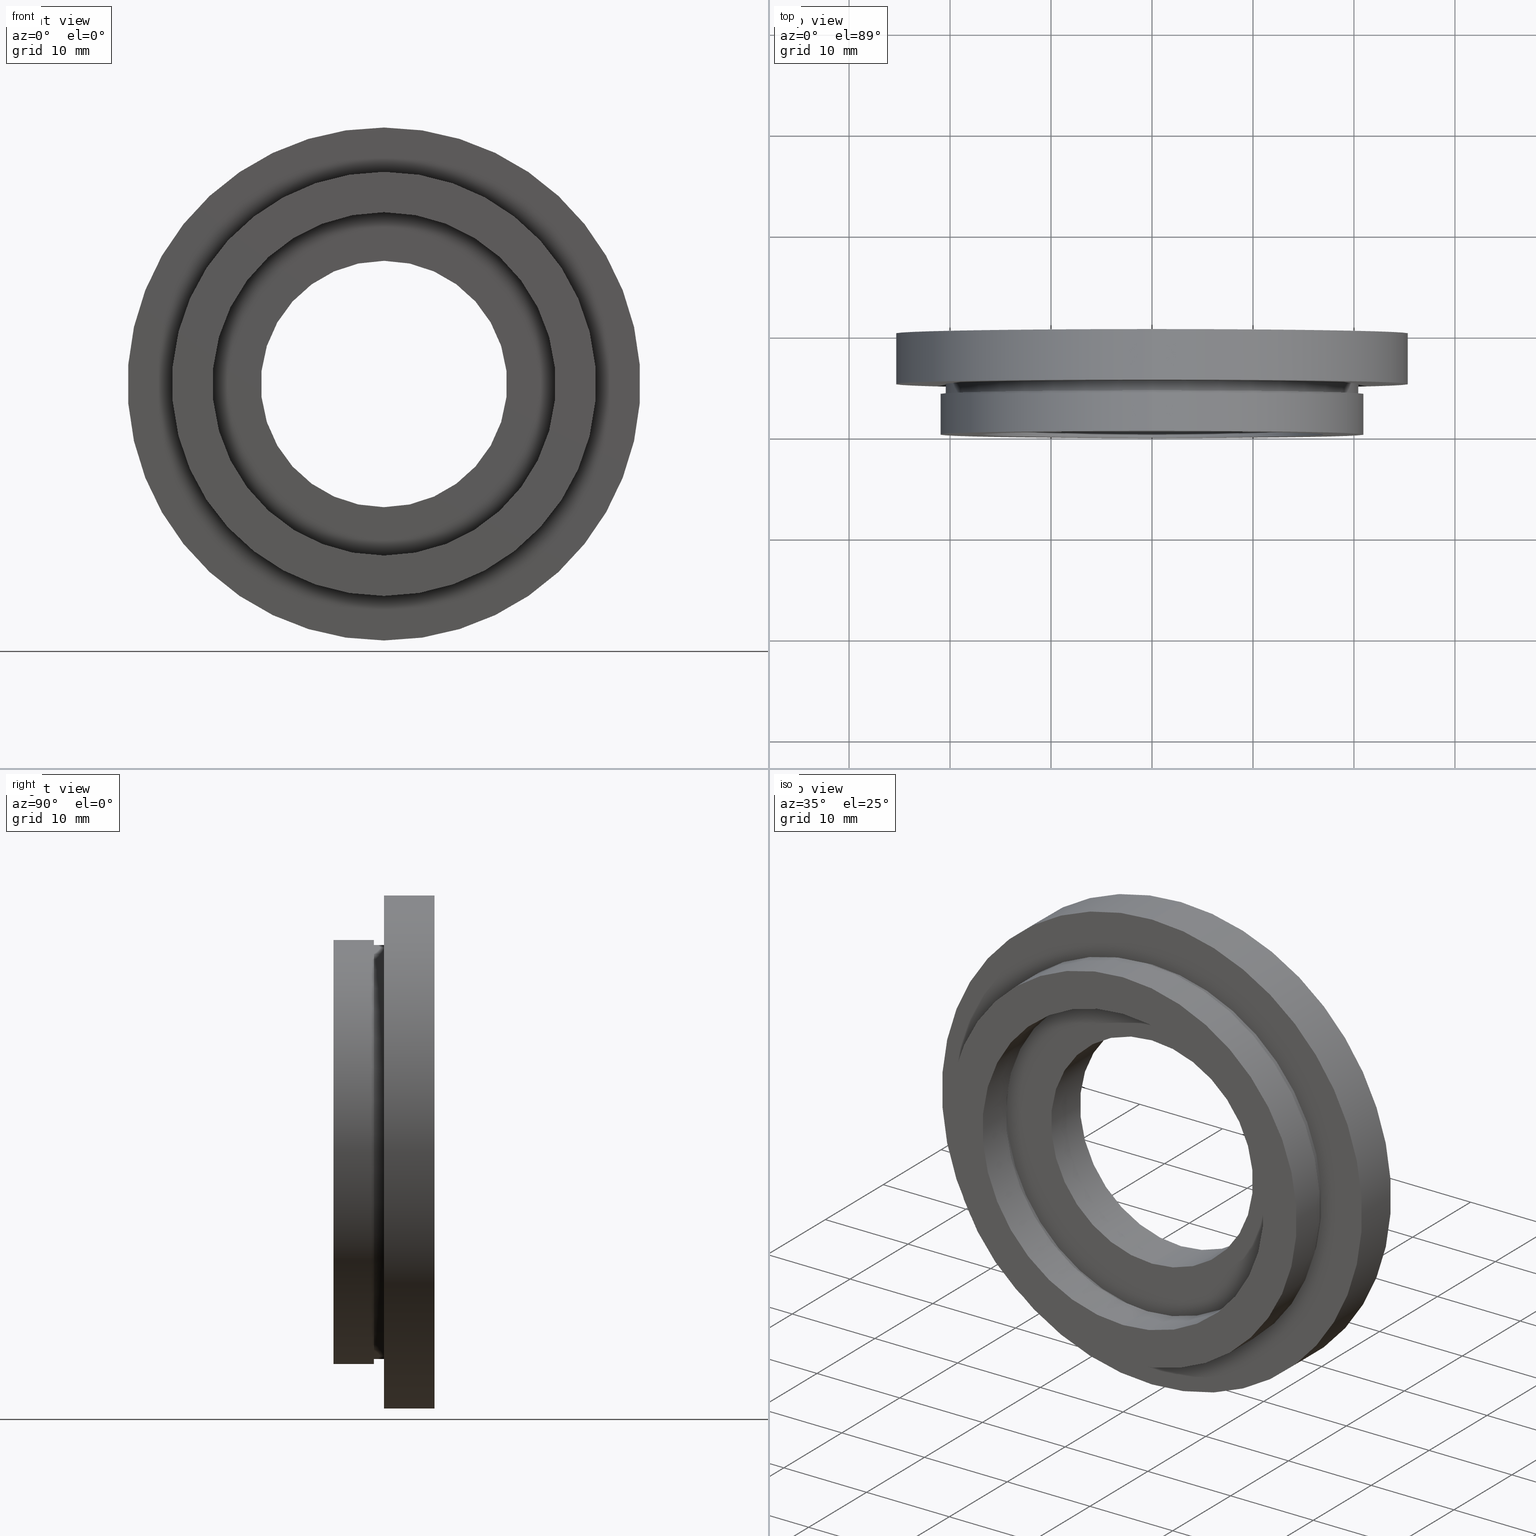
[diagram: canonical four-view strip — front | top / right | iso, engineering-drawing reading convention]
A machine part, canonical four-view strip (front | top / right | iso — engineering-drawing reading convention). The complete STEP part file that produces these views, byte-faithful:
ISO-10303-21;
HEADER;
FILE_DESCRIPTION (( 'STEP AP214' ),
    '1' );
FILE_NAME ('504034.STEP',
    '2019-09-29T09:12:28',
    ( 'user' ),
    ( '΢���й�' ),
    'SwSTEP 2.0',
    'SolidWorks 2016',
    '' );
FILE_SCHEMA (( 'AUTOMOTIVE_DESIGN' ));
ENDSEC;

DATA;
#1 = CYLINDRICAL_SURFACE ( 'NONE', #453, 12.20000000000000100 ) ;
#2 = SURFACE_SIDE_STYLE ('',( #545 ) ) ;
#3 = DIRECTION ( 'NONE',  ( 0.0000000000000000000, -0.0000000000000000000, -1.000000000000000000 ) ) ;
#4 = DIRECTION ( 'NONE',  ( -0.0000000000000000000, 1.000000000000000000, -0.0000000000000000000 ) ) ;
#5 = CARTESIAN_POINT ( 'NONE',  ( 0.0000000000000000000, 4.999999999999999100, 0.0000000000000000000 ) ) ;
#6 = DIRECTION ( 'NONE',  ( -0.0000000000000000000, 1.000000000000000000, -0.0000000000000000000 ) ) ;
#7 = CARTESIAN_POINT ( 'NONE',  ( 17.00000000000000400, 4.000000000000000000, 0.0000000000000000000 ) ) ;
#8 =( LENGTH_UNIT ( ) NAMED_UNIT ( * ) SI_UNIT ( .MILLI., .METRE. ) );
#9 = CARTESIAN_POINT ( 'NONE',  ( 0.0000000000000000000, 0.0000000000000000000, 0.0000000000000000000 ) ) ;
#10 = AXIS2_PLACEMENT_3D ( 'NONE', #191, #35, #592 ) ;
#11 = ORIENTED_EDGE ( 'NONE', *, *, #428, .F. ) ;
#12 = CARTESIAN_POINT ( 'NONE',  ( 2.510525938252074500E-015, 5.000000000000000900, -20.50000000000000000 ) ) ;
#13 = EDGE_LOOP ( 'NONE', ( #99, #154, #185, #187 ) ) ;
#14 = ORIENTED_EDGE ( 'NONE', *, *, #466, .F. ) ;
#15 = LINE ( 'NONE', #211, #257 ) ;
#16 = CARTESIAN_POINT ( 'NONE',  ( 0.0000000000000000000, 5.000000000000000900, 0.0000000000000000000 ) ) ;
#17 =( LENGTH_UNIT ( ) NAMED_UNIT ( * ) SI_UNIT ( .MILLI., .METRE. ) );
#18 = AXIS2_PLACEMENT_3D ( 'NONE', #131, #366, #618 ) ;
#19 =( NAMED_UNIT ( * ) PLANE_ANGLE_UNIT ( ) SI_UNIT ( $, .RADIAN. ) );
#20 = ORIENTED_EDGE ( 'NONE', *, *, #420, .F. ) ;
#21 =( GEOMETRIC_REPRESENTATION_CONTEXT ( 3 ) GLOBAL_UNCERTAINTY_ASSIGNED_CONTEXT ( ( #392 ) ) GLOBAL_UNIT_ASSIGNED_CONTEXT ( ( #176, #19, #354 ) ) REPRESENTATION_CONTEXT ( 'NONE', 'WORKASPACE' ) );
#22 =( GEOMETRIC_REPRESENTATION_CONTEXT ( 3 ) GLOBAL_UNCERTAINTY_ASSIGNED_CONTEXT ( ( #460 ) ) GLOBAL_UNIT_ASSIGNED_CONTEXT ( ( #239, #525, #186 ) ) REPRESENTATION_CONTEXT ( 'NONE', 'WORKASPACE' ) );
#23 = DIRECTION ( 'NONE',  ( 0.0000000000000000000, 0.0000000000000000000, 1.000000000000000000 ) ) ;
#24 = DIRECTION ( 'NONE',  ( -0.0000000000000000000, 1.000000000000000000, -0.0000000000000000000 ) ) ;
#25 = EDGE_LOOP ( 'NONE', ( #508, #499, #76, #506 ) ) ;
#26 = VERTEX_POINT ( 'NONE', #355 ) ;
#27 = CARTESIAN_POINT ( 'NONE',  ( 0.0000000000000000000, 17.41929831819392000, 0.0000000000000000000 ) ) ;
#28 = AXIS2_PLACEMENT_3D ( 'NONE', #581, #47, #357 ) ;
#29 = EDGE_LOOP ( 'NONE', ( #528, #364 ) ) ;
#30 = CIRCLE ( 'NONE', #67, 17.60000000000000100 ) ;
#31 = PRODUCT_CONTEXT ( 'NONE', #85, 'mechanical' ) ;
#32 = SURFACE_STYLE_USAGE ( .BOTH. , #2 ) ;
#33 = DIRECTION ( 'NONE',  ( 0.0000000000000000000, 0.0000000000000000000, 1.000000000000000000 ) ) ;
#34 = COLOUR_RGB ( '',1.000000000000000000, 1.000000000000000000, 1.000000000000000000 ) ;
#35 = DIRECTION ( 'NONE',  ( -0.0000000000000000000, 1.000000000000000000, -0.0000000000000000000 ) ) ;
#36 = EDGE_CURVE ( 'NONE', #145, #303, #224, .T. ) ;
#37 = DIRECTION ( 'NONE',  ( 0.0000000000000000000, 0.0000000000000000000, 1.000000000000000000 ) ) ;
#38 = SURFACE_STYLE_FILL_AREA ( #345 ) ;
#39 = CIRCLE ( 'NONE', #10, 12.20000000000000100 ) ;
#40 = AXIS2_PLACEMENT_3D ( 'NONE', #127, #361, #33 ) ;
#41 = DIRECTION ( 'NONE',  ( 0.0000000000000000000, 0.0000000000000000000, 1.000000000000000000 ) ) ;
#42 = ORIENTED_EDGE ( 'NONE', *, *, #424, .T. ) ;
#43 = SURFACE_STYLE_FILL_AREA ( #248 ) ;
#44 = CIRCLE ( 'NONE', #571, 12.20000000000000100 ) ;
#45 = PRESENTATION_STYLE_ASSIGNMENT (( #258 ) ) ;
#46 = CARTESIAN_POINT ( 'NONE',  ( 21.00000000000000400, 4.000000000000000000, 0.0000000000000000000 ) ) ;
#47 = DIRECTION ( 'NONE',  ( 0.0000000000000000000, 0.0000000000000000000, 1.000000000000000000 ) ) ;
#48 = ORIENTED_EDGE ( 'NONE', *, *, #132, .F. ) ;
#49 = STYLED_ITEM ( 'NONE', ( #289 ), #54 ) ;
#50 = AXIS2_PLACEMENT_3D ( 'NONE', #46, #520, #97 ) ;
#51 = DIRECTION ( 'NONE',  ( -0.0000000000000000000, 1.000000000000000000, -0.0000000000000000000 ) ) ;
#52 = SURFACE_STYLE_FILL_AREA ( #479 ) ;
#53 = PRODUCT_DEFINITION_SHAPE ( 'NONE', 'NONE',  #59 ) ;
#54 = ADVANCED_FACE ( 'NONE', ( #600 ), #593, .F. ) ;
#55 = ORIENTED_EDGE ( 'NONE', *, *, #440, .F. ) ;
#56 = PLANE ( 'NONE',  #133 ) ;
#57 = ORIENTED_EDGE ( 'NONE', *, *, #274, .F. ) ;
#58 = FACE_OUTER_BOUND ( 'NONE', #201, .T. ) ;
#59 = PRODUCT_DEFINITION ( 'δ֪', '', #189, #562 ) ;
#60 = LINE ( 'NONE', #340, #291 ) ;
#61 = CARTESIAN_POINT ( 'NONE',  ( 0.0000000000000000000, 17.41929831819392000, 0.0000000000000000000 ) ) ;
#62 = AXIS2_PLACEMENT_3D ( 'NONE', #5, #167, #277 ) ;
#63 = ORIENTED_EDGE ( 'NONE', *, *, #79, .F. ) ;
#64 = ORIENTED_EDGE ( 'NONE', *, *, #383, .T. ) ;
#65 = PRESENTATION_LAYER_ASSIGNMENT (  '', '', ( #472 ) ) ;
#66 = CARTESIAN_POINT ( 'NONE',  ( 0.0000000000000000000, 4.000000000000000000, 0.0000000000000000000 ) ) ;
#67 = AXIS2_PLACEMENT_3D ( 'NONE', #158, #564, #156 ) ;
#68 = VERTEX_POINT ( 'NONE', #12 ) ;
#69 = DIRECTION ( 'NONE',  ( 0.0000000000000000000, 0.0000000000000000000, 1.000000000000000000 ) ) ;
#70 = COLOUR_RGB ( '',1.000000000000000000, 1.000000000000000000, 1.000000000000000000 ) ;
#71 = VECTOR ( 'NONE', #246, 1000.000000000000000 ) ;
#72 = STYLED_ITEM ( 'NONE', ( #568 ), #620 ) ;
#73 = APPLICATION_CONTEXT ( 'automotive_design' ) ;
#74 = ADVANCED_FACE ( 'NONE', ( #414 ), #139, .T. ) ;
#75 = ORIENTED_EDGE ( 'NONE', *, *, #83, .F. ) ;
#76 = ORIENTED_EDGE ( 'NONE', *, *, #469, .T. ) ;
#77 = DIRECTION ( 'NONE',  ( -0.0000000000000000000, 1.000000000000000000, -0.0000000000000000000 ) ) ;
#78 = ADVANCED_FACE ( 'NONE', ( #349 ), #306, .F. ) ;
#79 = EDGE_CURVE ( 'NONE', #442, #403, #44, .T. ) ;
#80 = AXIS2_PLACEMENT_3D ( 'NONE', #66, #130, #23 ) ;
#81 = VERTEX_POINT ( 'NONE', #88 ) ;
#82 = EDGE_LOOP ( 'NONE', ( #55, #438, #42, #439 ) ) ;
#83 = EDGE_CURVE ( 'NONE', #109, #243, #290, .T. ) ;
#84 = ORIENTED_EDGE ( 'NONE', *, *, #338, .F. ) ;
#85 = APPLICATION_CONTEXT ( 'automotive_design' ) ;
#86 = FILL_AREA_STYLE ('',( #319 ) ) ;
#87 = CIRCLE ( 'NONE', #263, 20.50000000000000000 ) ;
#88 = CARTESIAN_POINT ( 'NONE',  ( 2.571758278209442100E-015, 0.0000000000000000000, -21.00000000000000400 ) ) ;
#89 = CARTESIAN_POINT ( 'NONE',  ( 2.510525938252074500E-015, 4.000000000000000000, -20.50000000000000000 ) ) ;
#90 = EDGE_LOOP ( 'NONE', ( #302, #474, #75, #209 ) ) ;
#91 = DIRECTION ( 'NONE',  ( 0.0000000000000000000, -0.0000000000000000000, -1.000000000000000000 ) ) ;
#92 = ADVANCED_BREP_SHAPE_REPRESENTATION ( '504034', ( #264, #28 ), #22 ) ;
#93 = DIRECTION ( 'NONE',  ( 0.0000000000000000000, 0.0000000000000000000, 1.000000000000000000 ) ) ;
#94 = CIRCLE ( 'NONE', #435, 17.60000000000000100 ) ;
#95 = AXIS2_PLACEMENT_3D ( 'NONE', #96, #197, #93 ) ;
#96 = CARTESIAN_POINT ( 'NONE',  ( 0.0000000000000000000, 4.000000000000000000, 0.0000000000000000000 ) ) ;
#97 = DIRECTION ( 'NONE',  ( 0.0000000000000000000, -0.0000000000000000000, -1.000000000000000000 ) ) ;
#98 = EDGE_LOOP ( 'NONE', ( #160, #456, #251, #572 ) ) ;
#99 = ORIENTED_EDGE ( 'NONE', *, *, #409, .F. ) ;
#100 = AXIS2_PLACEMENT_3D ( 'NONE', #553, #162, #122 ) ;
#101 = SURFACE_STYLE_USAGE ( .BOTH. , #170 ) ;
#102 = AXIS2_PLACEMENT_3D ( 'NONE', #449, #269, #612 ) ;
#103 = CYLINDRICAL_SURFACE ( 'NONE', #215, 17.00000000000000400 ) ;
#104 = CARTESIAN_POINT ( 'NONE',  ( 0.0000000000000000000, 10.00000000000000000, 0.0000000000000000000 ) ) ;
#105 = PRESENTATION_STYLE_ASSIGNMENT (( #607 ) ) ;
#106 =( NAMED_UNIT ( * ) SI_UNIT ( $, .STERADIAN. ) SOLID_ANGLE_UNIT ( ) );
#107 = DIRECTION ( 'NONE',  ( 0.0000000000000000000, -1.000000000000000000, 0.0000000000000000000 ) ) ;
#108 = AXIS2_PLACEMENT_3D ( 'NONE', #193, #373, #505 ) ;
#109 = VERTEX_POINT ( 'NONE', #555 ) ;
#110 = PRESENTATION_STYLE_ASSIGNMENT (( #597 ) ) ;
#111 = DIRECTION ( 'NONE',  ( -0.0000000000000000000, 1.000000000000000000, -0.0000000000000000000 ) ) ;
#112 = CARTESIAN_POINT ( 'NONE',  ( 0.0000000000000000000, 17.41929831819392000, 0.0000000000000000000 ) ) ;
#113 = CARTESIAN_POINT ( 'NONE',  ( 0.0000000000000000000, 17.41929831819392000, 12.20000000000000100 ) ) ;
#114 =( NAMED_UNIT ( * ) SI_UNIT ( $, .STERADIAN. ) SOLID_ANGLE_UNIT ( ) );
#115 = ORIENTED_EDGE ( 'NONE', *, *, #301, .T. ) ;
#116 = UNCERTAINTY_MEASURE_WITH_UNIT (LENGTH_MEASURE( 1.000000000000000100E-005 ), #143, 'distance_accuracy_value', 'NONE');
#117 = EDGE_CURVE ( 'NONE', #331, #457, #608, .T. ) ;
#118 = AXIS2_PLACEMENT_3D ( 'NONE', #523, #6, #574 ) ;
#119 = CIRCLE ( 'NONE', #149, 21.00000000000000400 ) ;
#120 = DIRECTION ( 'NONE',  ( -0.0000000000000000000, 1.000000000000000000, -0.0000000000000000000 ) ) ;
#121 = COLOUR_RGB ( '',1.000000000000000000, 1.000000000000000000, 1.000000000000000000 ) ;
#122 = DIRECTION ( 'NONE',  ( 0.0000000000000000000, 0.0000000000000000000, 1.000000000000000000 ) ) ;
#123 = UNCERTAINTY_MEASURE_WITH_UNIT (LENGTH_MEASURE( 1.000000000000000100E-005 ), #336, 'distance_accuracy_value', 'NONE');
#124 = DIRECTION ( 'NONE',  ( -0.0000000000000000000, 1.000000000000000000, -0.0000000000000000000 ) ) ;
#125 = ORIENTED_EDGE ( 'NONE', *, *, #447, .T. ) ;
#126 = MECHANICAL_DESIGN_GEOMETRIC_PRESENTATION_REPRESENTATION (  '', ( #408 ), #380 ) ;
#127 = CARTESIAN_POINT ( 'NONE',  ( 0.0000000000000000000, 10.00000000000000000, 0.0000000000000000000 ) ) ;
#128 = LINE ( 'NONE', #255, #381 ) ;
#129 = ADVANCED_FACE ( 'NONE', ( #490 ), #341, .T. ) ;
#130 = DIRECTION ( 'NONE',  ( -0.0000000000000000000, 1.000000000000000000, -0.0000000000000000000 ) ) ;
#131 = CARTESIAN_POINT ( 'NONE',  ( 0.0000000000000000000, 17.41929831819392000, 0.0000000000000000000 ) ) ;
#132 = EDGE_CURVE ( 'NONE', #267, #68, #359, .T. ) ;
#133 = AXIS2_PLACEMENT_3D ( 'NONE', #7, #107, #3 ) ;
#134 = PLANE ( 'NONE',  #265 ) ;
#135 = ADVANCED_FACE ( 'NONE', ( #165, #203 ), #238, .F. ) ;
#136 = AXIS2_PLACEMENT_3D ( 'NONE', #27, #514, #398 ) ;
#137 = EDGE_LOOP ( 'NONE', ( #546, #330 ) ) ;
#138 = DIRECTION ( 'NONE',  ( -0.0000000000000000000, 1.000000000000000000, -0.0000000000000000000 ) ) ;
#139 = CYLINDRICAL_SURFACE ( 'NONE', #450, 21.00000000000000400 ) ;
#140 = EDGE_LOOP ( 'NONE', ( #11, #175 ) ) ;
#141 = PLANE ( 'NONE',  #159 ) ;
#142 = VECTOR ( 'NONE', #51, 1000.000000000000000 ) ;
#143 =( LENGTH_UNIT ( ) NAMED_UNIT ( * ) SI_UNIT ( .MILLI., .METRE. ) );
#144 = DIRECTION ( 'NONE',  ( -0.0000000000000000000, 1.000000000000000000, -0.0000000000000000000 ) ) ;
#145 = VERTEX_POINT ( 'NONE', #280 ) ;
#146 = EDGE_CURVE ( 'NONE', #403, #442, #39, .T. ) ;
#147 = AXIS2_PLACEMENT_3D ( 'NONE', #429, #144, #455 ) ;
#148 = CYLINDRICAL_SURFACE ( 'NONE', #136, 17.60000000000000100 ) ;
#149 = AXIS2_PLACEMENT_3D ( 'NONE', #489, #124, #436 ) ;
#150 = DIRECTION ( 'NONE',  ( -0.0000000000000000000, 1.000000000000000000, -0.0000000000000000000 ) ) ;
#151 = CARTESIAN_POINT ( 'NONE',  ( 0.0000000000000000000, 4.999999999999999100, 0.0000000000000000000 ) ) ;
#152 = AXIS2_PLACEMENT_3D ( 'NONE', #195, #448, #208 ) ;
#153 = DIRECTION ( 'NONE',  ( 0.0000000000000000000, 0.0000000000000000000, 1.000000000000000000 ) ) ;
#154 = ORIENTED_EDGE ( 'NONE', *, *, #36, .F. ) ;
#155 = VERTEX_POINT ( 'NONE', #609 ) ;
#156 = DIRECTION ( 'NONE',  ( 0.0000000000000000000, 0.0000000000000000000, 1.000000000000000000 ) ) ;
#157 = FACE_OUTER_BOUND ( 'NONE', #606, .T. ) ;
#158 = CARTESIAN_POINT ( 'NONE',  ( 0.0000000000000000000, 4.000000000000000000, 0.0000000000000000000 ) ) ;
#159 = AXIS2_PLACEMENT_3D ( 'NONE', #569, #377, #91 ) ;
#160 = ORIENTED_EDGE ( 'NONE', *, *, #447, .F. ) ;
#161 = AXIS2_PLACEMENT_3D ( 'NONE', #426, #138, #531 ) ;
#162 = DIRECTION ( 'NONE',  ( -0.0000000000000000000, 1.000000000000000000, -0.0000000000000000000 ) ) ;
#163 = SURFACE_SIDE_STYLE ('',( #326 ) ) ;
#164 = ADVANCED_FACE ( 'NONE', ( #372 ), #148, .F. ) ;
#165 = FACE_BOUND ( 'NONE', #192, .T. ) ;
#166 = FILL_AREA_STYLE_COLOUR ( '', #34 ) ;
#167 = DIRECTION ( 'NONE',  ( -0.0000000000000000000, 1.000000000000000000, -0.0000000000000000000 ) ) ;
#168 = PRESENTATION_LAYER_ASSIGNMENT (  '', '', ( #172 ) ) ;
#169 = ADVANCED_FACE ( 'NONE', ( #279 ), #575, .T. ) ;
#170 = SURFACE_SIDE_STYLE ('',( #38 ) ) ;
#171 = COLOUR_RGB ( '',1.000000000000000000, 1.000000000000000000, 1.000000000000000000 ) ;
#172 = STYLED_ITEM ( 'NONE', ( #621 ), #264 ) ;
#173 = SURFACE_STYLE_FILL_AREA ( #368 ) ;
#174 = CIRCLE ( 'NONE', #80, 20.50000000000000000 ) ;
#175 = ORIENTED_EDGE ( 'NONE', *, *, #335, .F. ) ;
#176 =( LENGTH_UNIT ( ) NAMED_UNIT ( * ) SI_UNIT ( .MILLI., .METRE. ) );
#177 = ORIENTED_EDGE ( 'NONE', *, *, #83, .T. ) ;
#178 = DIRECTION ( 'NONE',  ( -0.0000000000000000000, 1.000000000000000000, 0.0000000000000000000 ) ) ;
#179 = ADVANCED_FACE ( 'NONE', ( #217, #510 ), #56, .F. ) ;
#180 = AXIS2_PLACEMENT_3D ( 'NONE', #151, #225, #228 ) ;
#181 = CARTESIAN_POINT ( 'NONE',  ( 2.155378366499341600E-015, 4.999999999999999100, -17.60000000000000100 ) ) ;
#182 = DIRECTION ( 'NONE',  ( -0.0000000000000000000, 1.000000000000000000, -0.0000000000000000000 ) ) ;
#183 = AXIS2_PLACEMENT_3D ( 'NONE', #216, #404, #590 ) ;
#184 = STYLED_ITEM ( 'NONE', ( #110 ), #74 ) ;
#185 = ORIENTED_EDGE ( 'NONE', *, *, #394, .T. ) ;
#186 =( NAMED_UNIT ( * ) SI_UNIT ( $, .STERADIAN. ) SOLID_ANGLE_UNIT ( ) );
#187 = ORIENTED_EDGE ( 'NONE', *, *, #146, .T. ) ;
#188 = EDGE_CURVE ( 'NONE', #500, #613, #119, .T. ) ;
#189 = PRODUCT_DEFINITION_FORMATION_WITH_SPECIFIED_SOURCE ( '�κ�', '', #431, .NOT_KNOWN. ) ;
#190 = SURFACE_SIDE_STYLE ('',( #588 ) ) ;
#191 = CARTESIAN_POINT ( 'NONE',  ( 0.0000000000000000000, 10.00000000000000000, 0.0000000000000000000 ) ) ;
#192 = EDGE_LOOP ( 'NONE', ( #458, #533 ) ) ;
#193 = CARTESIAN_POINT ( 'NONE',  ( 0.0000000000000000000, 4.000000000000000000, 0.0000000000000000000 ) ) ;
#194 = EDGE_CURVE ( 'NONE', #480, #26, #407, .T. ) ;
#195 = CARTESIAN_POINT ( 'NONE',  ( 0.0000000000000000000, 17.41929831819392000, 0.0000000000000000000 ) ) ;
#196 = CARTESIAN_POINT ( 'NONE',  ( 0.0000000000000000000, 17.41929831819392000, 0.0000000000000000000 ) ) ;
#197 = DIRECTION ( 'NONE',  ( -0.0000000000000000000, 1.000000000000000000, -0.0000000000000000000 ) ) ;
#198 = STYLED_ITEM ( 'NONE', ( #105 ), #129 ) ;
#199 = EDGE_LOOP ( 'NONE', ( #337, #313 ) ) ;
#200 = CARTESIAN_POINT ( 'NONE',  ( 1.494069094959771100E-015, 4.999999999999999100, -12.20000000000000100 ) ) ;
#201 = EDGE_LOOP ( 'NONE', ( #566, #385, #557, #537 ) ) ;
#202 = PRESENTATION_STYLE_ASSIGNMENT (( #32 ) ) ;
#203 = FACE_OUTER_BOUND ( 'NONE', #347, .T. ) ;
#204 = CIRCLE ( 'NONE', #256, 20.50000000000000000 ) ;
#205 = AXIS2_PLACEMENT_3D ( 'NONE', #624, #318, #362 ) ;
#206 = CARTESIAN_POINT ( 'NONE',  ( 0.0000000000000000000, 5.000000000000000900, 0.0000000000000000000 ) ) ;
#207 = AXIS2_PLACEMENT_3D ( 'NONE', #527, #178, #512 ) ;
#208 = DIRECTION ( 'NONE',  ( 0.0000000000000000000, 0.0000000000000000000, 1.000000000000000000 ) ) ;
#209 = ORIENTED_EDGE ( 'NONE', *, *, #469, .F. ) ;
#210 = ORIENTED_EDGE ( 'NONE', *, *, #328, .T. ) ;
#211 = CARTESIAN_POINT ( 'NONE',  ( 2.510525938252074500E-015, 17.41929831819392000, -20.50000000000000000 ) ) ;
#212 =( NAMED_UNIT ( * ) PLANE_ANGLE_UNIT ( ) SI_UNIT ( $, .RADIAN. ) );
#213 = FILL_AREA_STYLE_COLOUR ( '', #121 ) ;
#214 = CARTESIAN_POINT ( 'NONE',  ( 2.155378366499341600E-015, 17.41929831819392000, -17.60000000000000100 ) ) ;
#215 = AXIS2_PLACEMENT_3D ( 'NONE', #443, #77, #441 ) ;
#216 = CARTESIAN_POINT ( 'NONE',  ( 0.0000000000000000000, 0.0000000000000000000, 0.0000000000000000000 ) ) ;
#217 = FACE_BOUND ( 'NONE', #402, .T. ) ;
#218 = CIRCLE ( 'NONE', #102, 21.00000000000000400 ) ;
#219 = CARTESIAN_POINT ( 'NONE',  ( 0.0000000000000000000, 4.000000000000000000, 17.00000000000000400 ) ) ;
#220 = AXIS2_PLACEMENT_3D ( 'NONE', #578, #585, #396 ) ;
#221 = VERTEX_POINT ( 'NONE', #483 ) ;
#222 = ORIENTED_EDGE ( 'NONE', *, *, #310, .T. ) ;
#223 = CARTESIAN_POINT ( 'NONE',  ( 0.0000000000000000000, 10.00000000000000000, 0.0000000000000000000 ) ) ;
#224 = CIRCLE ( 'NONE', #100, 12.20000000000000100 ) ;
#225 = DIRECTION ( 'NONE',  ( -0.0000000000000000000, 1.000000000000000000, -0.0000000000000000000 ) ) ;
#226 = ADVANCED_FACE ( 'NONE', ( #464 ), #236, .T. ) ;
#227 = DIRECTION ( 'NONE',  ( -0.0000000000000000000, 1.000000000000000000, -0.0000000000000000000 ) ) ;
#228 = DIRECTION ( 'NONE',  ( 0.0000000000000000000, 0.0000000000000000000, 1.000000000000000000 ) ) ;
#229 = SURFACE_SIDE_STYLE ('',( #451 ) ) ;
#230 = FACE_BOUND ( 'NONE', #470, .T. ) ;
#231 = DIRECTION ( 'NONE',  ( -0.0000000000000000000, 1.000000000000000000, -0.0000000000000000000 ) ) ;
#232 = EDGE_LOOP ( 'NONE', ( #210, #535, #498, #437 ) ) ;
#233 = DIRECTION ( 'NONE',  ( -0.0000000000000000000, 1.000000000000000000, -0.0000000000000000000 ) ) ;
#234 = SHAPE_DEFINITION_REPRESENTATION ( #53, #92 ) ;
#235 = DIRECTION ( 'NONE',  ( -0.0000000000000000000, 1.000000000000000000, -0.0000000000000000000 ) ) ;
#236 = CYLINDRICAL_SURFACE ( 'NONE', #314, 20.50000000000000000 ) ;
#237 = CIRCLE ( 'NONE', #275, 17.00000000000000400 ) ;
#238 = PLANE ( 'NONE',  #50 ) ;
#239 =( LENGTH_UNIT ( ) NAMED_UNIT ( * ) SI_UNIT ( .MILLI., .METRE. ) );
#240 = DIRECTION ( 'NONE',  ( 0.0000000000000000000, 0.0000000000000000000, 1.000000000000000000 ) ) ;
#241 = SURFACE_STYLE_USAGE ( .BOTH. , #190 ) ;
#242 = CARTESIAN_POINT ( 'NONE',  ( 0.0000000000000000000, 17.41929831819392000, 0.0000000000000000000 ) ) ;
#243 = VERTEX_POINT ( 'NONE', #445 ) ;
#244 = PRODUCT_RELATED_PRODUCT_CATEGORY ( 'part', '', ( #431 ) ) ;
#245 = FILL_AREA_STYLE_COLOUR ( '', #171 ) ;
#246 = DIRECTION ( 'NONE',  ( -0.0000000000000000000, 1.000000000000000000, -0.0000000000000000000 ) ) ;
#247 = VECTOR ( 'NONE', #120, 1000.000000000000000 ) ;
#248 = FILL_AREA_STYLE ('',( #245 ) ) ;
#249 = CARTESIAN_POINT ( 'NONE',  ( 3.110602869834276900E-015, 17.41929831819392000, -25.39999999999999900 ) ) ;
#250 = DIRECTION ( 'NONE',  ( 0.0000000000000000000, 0.0000000000000000000, 1.000000000000000000 ) ) ;
#251 = ORIENTED_EDGE ( 'NONE', *, *, #274, .T. ) ;
#252 = UNCERTAINTY_MEASURE_WITH_UNIT (LENGTH_MEASURE( 1.000000000000000100E-005 ), #599, 'distance_accuracy_value', 'NONE');
#253 = ORIENTED_EDGE ( 'NONE', *, *, #387, .T. ) ;
#254 = FACE_BOUND ( 'NONE', #199, .T. ) ;
#255 = CARTESIAN_POINT ( 'NONE',  ( 0.0000000000000000000, 17.41929831819392000, 17.00000000000000400 ) ) ;
#256 = AXIS2_PLACEMENT_3D ( 'NONE', #576, #497, #524 ) ;
#257 = VECTOR ( 'NONE', #504, 1000.000000000000000 ) ;
#258 = SURFACE_STYLE_USAGE ( .BOTH. , #615 ) ;
#259 = CARTESIAN_POINT ( 'NONE',  ( 0.0000000000000000000, 0.0000000000000000000, 0.0000000000000000000 ) ) ;
#260 =( NAMED_UNIT ( * ) SI_UNIT ( $, .STERADIAN. ) SOLID_ANGLE_UNIT ( ) );
#261 = UNCERTAINTY_MEASURE_WITH_UNIT (LENGTH_MEASURE( 1.000000000000000100E-005 ), #17, 'distance_accuracy_value', 'NONE');
#262 =( GEOMETRIC_REPRESENTATION_CONTEXT ( 3 ) GLOBAL_UNCERTAINTY_ASSIGNED_CONTEXT ( ( #252 ) ) GLOBAL_UNIT_ASSIGNED_CONTEXT ( ( #599, #212, #260 ) ) REPRESENTATION_CONTEXT ( 'NONE', 'WORKASPACE' ) );
#263 = AXIS2_PLACEMENT_3D ( 'NONE', #459, #559, #482 ) ;
#264 = MANIFOLD_SOLID_BREP ( '��ת1', #418 ) ;
#265 = AXIS2_PLACEMENT_3D ( 'NONE', #425, #488, #393 ) ;
#266 = CARTESIAN_POINT ( 'NONE',  ( 0.0000000000000000000, 5.000000000000000900, 20.50000000000000000 ) ) ;
#267 = VERTEX_POINT ( 'NONE', #266 ) ;
#268 = ORIENTED_EDGE ( 'NONE', *, *, #410, .F. ) ;
#269 = DIRECTION ( 'NONE',  ( -0.0000000000000000000, 1.000000000000000000, -0.0000000000000000000 ) ) ;
#270 = MECHANICAL_DESIGN_GEOMETRIC_PRESENTATION_REPRESENTATION (  '', ( #172 ), #422 ) ;
#271 = EDGE_CURVE ( 'NONE', #613, #500, #561, .T. ) ;
#272 = DIRECTION ( 'NONE',  ( -0.0000000000000000000, 1.000000000000000000, -0.0000000000000000000 ) ) ;
#273 = LINE ( 'NONE', #113, #247 ) ;
#274 = EDGE_CURVE ( 'NONE', #558, #26, #60, .T. ) ;
#275 = AXIS2_PLACEMENT_3D ( 'NONE', #259, #363, #69 ) ;
#276 =( NAMED_UNIT ( * ) PLANE_ANGLE_UNIT ( ) SI_UNIT ( $, .RADIAN. ) );
#277 = DIRECTION ( 'NONE',  ( 0.0000000000000000000, 0.0000000000000000000, 1.000000000000000000 ) ) ;
#278 = FACE_OUTER_BOUND ( 'NONE', #515, .T. ) ;
#279 = FACE_OUTER_BOUND ( 'NONE', #25, .T. ) ;
#280 = CARTESIAN_POINT ( 'NONE',  ( 0.0000000000000000000, 4.999999999999999100, 12.20000000000000100 ) ) ;
#281 = PLANE ( 'NONE',  #477 ) ;
#282 = DIRECTION ( 'NONE',  ( 0.0000000000000000000, 0.0000000000000000000, 1.000000000000000000 ) ) ;
#283 =( NAMED_UNIT ( * ) PLANE_ANGLE_UNIT ( ) SI_UNIT ( $, .RADIAN. ) );
#284 = VERTEX_POINT ( 'NONE', #219 ) ;
#285 = SURFACE_SIDE_STYLE ('',( #173 ) ) ;
#286 = ORIENTED_EDGE ( 'NONE', *, *, #146, .F. ) ;
#287 = CARTESIAN_POINT ( 'NONE',  ( 0.0000000000000000000, 0.0000000000000000000, 17.00000000000000400 ) ) ;
#288 = UNCERTAINTY_MEASURE_WITH_UNIT (LENGTH_MEASURE( 1.000000000000000100E-005 ), #8, 'distance_accuracy_value', 'NONE');
#289 = PRESENTATION_STYLE_ASSIGNMENT (( #241 ) ) ;
#290 = CIRCLE ( 'NONE', #540, 25.39999999999999900 ) ;
#291 = VECTOR ( 'NONE', #150, 1000.000000000000000 ) ;
#292 = MECHANICAL_DESIGN_GEOMETRIC_PRESENTATION_REPRESENTATION (  '', ( #472 ), #21 ) ;
#293 = CARTESIAN_POINT ( 'NONE',  ( 1.494069094959771100E-015, 17.41929831819392000, -12.20000000000000100 ) ) ;
#294 = ORIENTED_EDGE ( 'NONE', *, *, #325, .F. ) ;
#295 = EDGE_LOOP ( 'NONE', ( #415, #294, #64, #522 ) ) ;
#296 = CARTESIAN_POINT ( 'NONE',  ( 0.0000000000000000000, 17.41929831819392000, 21.00000000000000400 ) ) ;
#297 = LINE ( 'NONE', #452, #332 ) ;
#298 = EDGE_CURVE ( 'NONE', #534, #500, #427, .T. ) ;
#299 = EDGE_CURVE ( 'NONE', #221, #397, #174, .T. ) ;
#300 = DIRECTION ( 'NONE',  ( -0.0000000000000000000, 1.000000000000000000, -0.0000000000000000000 ) ) ;
#301 = EDGE_CURVE ( 'NONE', #243, #109, #327, .T. ) ;
#302 = ORIENTED_EDGE ( 'NONE', *, *, #428, .T. ) ;
#303 = VERTEX_POINT ( 'NONE', #200 ) ;
#304 = EDGE_CURVE ( 'NONE', #397, #221, #87, .T. ) ;
#305 = COLOUR_RGB ( '',1.000000000000000000, 1.000000000000000000, 1.000000000000000000 ) ;
#306 = CYLINDRICAL_SURFACE ( 'NONE', #205, 17.00000000000000400 ) ;
#307 = CARTESIAN_POINT ( 'NONE',  ( 2.081899558550500700E-015, 0.0000000000000000000, -17.00000000000000400 ) ) ;
#308 = CIRCLE ( 'NONE', #62, 17.60000000000000100 ) ;
#309 = PRESENTATION_LAYER_ASSIGNMENT (  '', '', ( #379 ) ) ;
#310 = EDGE_CURVE ( 'NONE', #68, #267, #204, .T. ) ;
#311 = ADVANCED_FACE ( 'NONE', ( #595 ), #342, .T. ) ;
#312 = CARTESIAN_POINT ( 'NONE',  ( 0.0000000000000000000, 4.000000000000000000, 21.00000000000000400 ) ) ;
#313 = ORIENTED_EDGE ( 'NONE', *, *, #466, .T. ) ;
#314 = AXIS2_PLACEMENT_3D ( 'NONE', #382, #536, #240 ) ;
#315 = COLOUR_RGB ( '',1.000000000000000000, 1.000000000000000000, 1.000000000000000000 ) ;
#316 = PRESENTATION_STYLE_ASSIGNMENT (( #101 ) ) ;
#317 = CIRCLE ( 'NONE', #617, 25.39999999999999900 ) ;
#318 = DIRECTION ( 'NONE',  ( -0.0000000000000000000, 1.000000000000000000, -0.0000000000000000000 ) ) ;
#319 = FILL_AREA_STYLE_COLOUR ( '', #315 ) ;
#320 = EDGE_CURVE ( 'NONE', #81, #613, #476, .T. ) ;
#321 = UNCERTAINTY_MEASURE_WITH_UNIT (LENGTH_MEASURE( 1.000000000000000100E-005 ), #486, 'distance_accuracy_value', 'NONE');
#322 = EDGE_LOOP ( 'NONE', ( #573, #386 ) ) ;
#323 = FILL_AREA_STYLE_COLOUR ( '', #70 ) ;
#324 = MECHANICAL_DESIGN_GEOMETRIC_PRESENTATION_REPRESENTATION (  '', ( #184 ), #262 ) ;
#325 = EDGE_CURVE ( 'NONE', #358, #331, #237, .T. ) ;
#326 = SURFACE_STYLE_FILL_AREA ( #521 ) ;
#327 = CIRCLE ( 'NONE', #40, 25.39999999999999900 ) ;
#328 = EDGE_CURVE ( 'NONE', #534, #81, #467, .T. ) ;
#329 = DIRECTION ( 'NONE',  ( -0.0000000000000000000, 1.000000000000000000, -0.0000000000000000000 ) ) ;
#330 = ORIENTED_EDGE ( 'NONE', *, *, #346, .F. ) ;
#331 = VERTEX_POINT ( 'NONE', #307 ) ;
#332 = VECTOR ( 'NONE', #111, 1000.000000000000000 ) ;
#333 = PLANE ( 'NONE',  #207 ) ;
#334 = EDGE_CURVE ( 'NONE', #155, #243, #491, .T. ) ;
#335 = EDGE_CURVE ( 'NONE', #155, #516, #360, .T. ) ;
#336 =( LENGTH_UNIT ( ) NAMED_UNIT ( * ) SI_UNIT ( .MILLI., .METRE. ) );
#337 = ORIENTED_EDGE ( 'NONE', *, *, #36, .T. ) ;
#338 = EDGE_CURVE ( 'NONE', #284, #457, #610, .T. ) ;
#339 = FILL_AREA_STYLE_COLOUR ( '', #444 ) ;
#340 = CARTESIAN_POINT ( 'NONE',  ( 0.0000000000000000000, 17.41929831819392000, 17.60000000000000100 ) ) ;
#341 = CYLINDRICAL_SURFACE ( 'NONE', #161, 21.00000000000000400 ) ;
#342 = CYLINDRICAL_SURFACE ( 'NONE', #18, 20.50000000000000000 ) ;
#343 = DIRECTION ( 'NONE',  ( 0.0000000000000000000, 0.0000000000000000000, 1.000000000000000000 ) ) ;
#344 = CARTESIAN_POINT ( 'NONE',  ( 2.081899558550500700E-015, 17.41929831819392000, -17.00000000000000400 ) ) ;
#345 = FILL_AREA_STYLE ('',( #570 ) ) ;
#346 = EDGE_CURVE ( 'NONE', #81, #534, #218, .T. ) ;
#347 = EDGE_LOOP ( 'NONE', ( #473, #556 ) ) ;
#348 = DIRECTION ( 'NONE',  ( -0.0000000000000000000, 1.000000000000000000, -0.0000000000000000000 ) ) ;
#349 = FACE_OUTER_BOUND ( 'NONE', #295, .T. ) ;
#350 = ADVANCED_FACE ( 'NONE', ( #374, #423 ), #333, .F. ) ;
#351 = CIRCLE ( 'NONE', #183, 17.00000000000000400 ) ;
#352 = APPLICATION_PROTOCOL_DEFINITION ( 'draft international standard', 'automotive_design', 1998, #85 ) ;
#353 = EDGE_CURVE ( 'NONE', #26, #480, #308, .T. ) ;
#354 =( NAMED_UNIT ( * ) SI_UNIT ( $, .STERADIAN. ) SOLID_ANGLE_UNIT ( ) );
#355 = CARTESIAN_POINT ( 'NONE',  ( 0.0000000000000000000, 4.999999999999999100, 17.60000000000000100 ) ) ;
#356 = ADVANCED_FACE ( 'NONE', ( #278 ), #1, .F. ) ;
#357 = DIRECTION ( 'NONE',  ( 1.000000000000000000, 0.0000000000000000000, 0.0000000000000000000 ) ) ;
#358 = VERTEX_POINT ( 'NONE', #287 ) ;
#359 = CIRCLE ( 'NONE', #405, 20.50000000000000000 ) ;
#360 = CIRCLE ( 'NONE', #395, 25.39999999999999900 ) ;
#361 = DIRECTION ( 'NONE',  ( -0.0000000000000000000, 1.000000000000000000, -0.0000000000000000000 ) ) ;
#362 = DIRECTION ( 'NONE',  ( 0.0000000000000000000, 0.0000000000000000000, 1.000000000000000000 ) ) ;
#363 = DIRECTION ( 'NONE',  ( -0.0000000000000000000, 1.000000000000000000, -0.0000000000000000000 ) ) ;
#364 = ORIENTED_EDGE ( 'NONE', *, *, #410, .T. ) ;
#365 = PRESENTATION_LAYER_ASSIGNMENT (  '', '', ( #72 ) ) ;
#366 = DIRECTION ( 'NONE',  ( -0.0000000000000000000, 1.000000000000000000, -0.0000000000000000000 ) ) ;
#367 = CYLINDRICAL_SURFACE ( 'NONE', #563, 17.60000000000000100 ) ;
#368 = FILL_AREA_STYLE ('',( #339 ) ) ;
#369 = CARTESIAN_POINT ( 'NONE',  ( 0.0000000000000000000, 4.000000000000000000, 0.0000000000000000000 ) ) ;
#370 = PRESENTATION_LAYER_ASSIGNMENT (  '', '', ( #198 ) ) ;
#371 = MECHANICAL_DESIGN_GEOMETRIC_PRESENTATION_REPRESENTATION (  '', ( #72 ), #518 ) ;
#372 = FACE_OUTER_BOUND ( 'NONE', #98, .T. ) ;
#373 = DIRECTION ( 'NONE',  ( -0.0000000000000000000, 1.000000000000000000, -0.0000000000000000000 ) ) ;
#374 = FACE_OUTER_BOUND ( 'NONE', #140, .T. ) ;
#375 = EDGE_CURVE ( 'NONE', #558, #580, #94, .T. ) ;
#376 = SURFACE_STYLE_USAGE ( .BOTH. , #229 ) ;
#377 = DIRECTION ( 'NONE',  ( 0.0000000000000000000, -1.000000000000000000, 0.0000000000000000000 ) ) ;
#378 = ORIENTED_EDGE ( 'NONE', *, *, #346, .T. ) ;
#379 = STYLED_ITEM ( 'NONE', ( #202 ), #78 ) ;
#380 =( GEOMETRIC_REPRESENTATION_CONTEXT ( 3 ) GLOBAL_UNCERTAINTY_ASSIGNED_CONTEXT ( ( #123 ) ) GLOBAL_UNIT_ASSIGNED_CONTEXT ( ( #336, #517, #430 ) ) REPRESENTATION_CONTEXT ( 'NONE', 'WORKASPACE' ) );
#381 = VECTOR ( 'NONE', #231, 1000.000000000000000 ) ;
#382 = CARTESIAN_POINT ( 'NONE',  ( 0.0000000000000000000, 17.41929831819392000, 0.0000000000000000000 ) ) ;
#383 = EDGE_CURVE ( 'NONE', #358, #284, #128, .T. ) ;
#384 = UNCERTAINTY_MEASURE_WITH_UNIT (LENGTH_MEASURE( 1.000000000000000100E-005 ), #544, 'distance_accuracy_value', 'NONE');
#385 = ORIENTED_EDGE ( 'NONE', *, *, #117, .T. ) ;
#386 = ORIENTED_EDGE ( 'NONE', *, *, #194, .F. ) ;
#387 = EDGE_CURVE ( 'NONE', #331, #358, #351, .T. ) ;
#388 = DIRECTION ( 'NONE',  ( -0.0000000000000000000, 1.000000000000000000, -0.0000000000000000000 ) ) ;
#389 = DIRECTION ( 'NONE',  ( 0.0000000000000000000, 0.0000000000000000000, 1.000000000000000000 ) ) ;
#390 = ADVANCED_FACE ( 'NONE', ( #230, #519 ), #141, .F. ) ;
#391 = CARTESIAN_POINT ( 'NONE',  ( 2.571758278209442100E-015, 17.41929831819392000, -21.00000000000000400 ) ) ;
#392 = UNCERTAINTY_MEASURE_WITH_UNIT (LENGTH_MEASURE( 1.000000000000000100E-005 ), #176, 'distance_accuracy_value', 'NONE');
#393 = DIRECTION ( 'NONE',  ( 0.0000000000000000000, 0.0000000000000000000, 1.000000000000000000 ) ) ;
#394 = EDGE_CURVE ( 'NONE', #145, #403, #273, .T. ) ;
#395 = AXIS2_PLACEMENT_3D ( 'NONE', #434, #227, #603 ) ;
#396 = DIRECTION ( 'NONE',  ( 0.0000000000000000000, 0.0000000000000000000, 1.000000000000000000 ) ) ;
#397 = VERTEX_POINT ( 'NONE', #89 ) ;
#398 = DIRECTION ( 'NONE',  ( 0.0000000000000000000, 0.0000000000000000000, 1.000000000000000000 ) ) ;
#399 = AXIS2_PLACEMENT_3D ( 'NONE', #9, #475, #37 ) ;
#400 = FACE_OUTER_BOUND ( 'NONE', #90, .T. ) ;
#401 = CARTESIAN_POINT ( 'NONE',  ( 17.00000000000000400, 0.0000000000000000000, 0.0000000000000000000 ) ) ;
#402 = EDGE_LOOP ( 'NONE', ( #84, #20 ) ) ;
#403 = VERTEX_POINT ( 'NONE', #579 ) ;
#404 = DIRECTION ( 'NONE',  ( -0.0000000000000000000, 1.000000000000000000, -0.0000000000000000000 ) ) ;
#405 = AXIS2_PLACEMENT_3D ( 'NONE', #206, #4, #432 ) ;
#406 = DIRECTION ( 'NONE',  ( 0.0000000000000000000, 0.0000000000000000000, 1.000000000000000000 ) ) ;
#407 = CIRCLE ( 'NONE', #180, 17.60000000000000100 ) ;
#408 = STYLED_ITEM ( 'NONE', ( #316 ), #92 ) ;
#409 = EDGE_CURVE ( 'NONE', #303, #442, #416, .T. ) ;
#410 = EDGE_CURVE ( 'NONE', #580, #558, #30, .T. ) ;
#411 = ADVANCED_FACE ( 'NONE', ( #157 ), #367, .F. ) ;
#412 = CARTESIAN_POINT ( 'NONE',  ( 0.0000000000000000000, 17.41929831819392000, 25.39999999999999900 ) ) ;
#413 = ORIENTED_EDGE ( 'NONE', *, *, #299, .T. ) ;
#414 = FACE_OUTER_BOUND ( 'NONE', #565, .T. ) ;
#415 = ORIENTED_EDGE ( 'NONE', *, *, #117, .F. ) ;
#416 = LINE ( 'NONE', #293, #547 ) ;
#417 =( GEOMETRIC_REPRESENTATION_CONTEXT ( 3 ) GLOBAL_UNCERTAINTY_ASSIGNED_CONTEXT ( ( #261 ) ) GLOBAL_UNIT_ASSIGNED_CONTEXT ( ( #17, #511, #598 ) ) REPRESENTATION_CONTEXT ( 'NONE', 'WORKASPACE' ) );
#418 = CLOSED_SHELL ( 'NONE', ( #620, #411, #356, #446, #311, #129, #462, #74, #135, #226, #350, #169, #390, #54, #468, #164, #179, #78 ) ) ;
#419 = ORIENTED_EDGE ( 'NONE', *, *, #394, .F. ) ;
#420 = EDGE_CURVE ( 'NONE', #457, #284, #529, .T. ) ;
#421 = DIRECTION ( 'NONE',  ( -0.0000000000000000000, 1.000000000000000000, 0.0000000000000000000 ) ) ;
#422 =( GEOMETRIC_REPRESENTATION_CONTEXT ( 3 ) GLOBAL_UNCERTAINTY_ASSIGNED_CONTEXT ( ( #384 ) ) GLOBAL_UNIT_ASSIGNED_CONTEXT ( ( #544, #507, #587 ) ) REPRESENTATION_CONTEXT ( 'NONE', 'WORKASPACE' ) );
#423 = FACE_BOUND ( 'NONE', #481, .T. ) ;
#424 = EDGE_CURVE ( 'NONE', #221, #267, #297, .T. ) ;
#425 = CARTESIAN_POINT ( 'NONE',  ( 17.60000000000000100, 4.999999999999999100, 0.0000000000000000000 ) ) ;
#426 = CARTESIAN_POINT ( 'NONE',  ( 0.0000000000000000000, 17.41929831819392000, 0.0000000000000000000 ) ) ;
#427 = LINE ( 'NONE', #296, #577 ) ;
#428 = EDGE_CURVE ( 'NONE', #516, #155, #317, .T. ) ;
#429 = CARTESIAN_POINT ( 'NONE',  ( 0.0000000000000000000, 4.999999999999999100, 0.0000000000000000000 ) ) ;
#430 =( NAMED_UNIT ( * ) SI_UNIT ( $, .STERADIAN. ) SOLID_ANGLE_UNIT ( ) );
#431 = PRODUCT ( '504034', '504034', '', ( #31 ) ) ;
#432 = DIRECTION ( 'NONE',  ( 0.0000000000000000000, 0.0000000000000000000, 1.000000000000000000 ) ) ;
#433 = FACE_OUTER_BOUND ( 'NONE', #322, .T. ) ;
#434 = CARTESIAN_POINT ( 'NONE',  ( 0.0000000000000000000, 5.000000000000000900, 0.0000000000000000000 ) ) ;
#435 = AXIS2_PLACEMENT_3D ( 'NONE', #369, #329, #282 ) ;
#436 = DIRECTION ( 'NONE',  ( 0.0000000000000000000, 0.0000000000000000000, 1.000000000000000000 ) ) ;
#437 = ORIENTED_EDGE ( 'NONE', *, *, #298, .F. ) ;
#438 = ORIENTED_EDGE ( 'NONE', *, *, #304, .T. ) ;
#439 = ORIENTED_EDGE ( 'NONE', *, *, #310, .F. ) ;
#440 = EDGE_CURVE ( 'NONE', #397, #68, #15, .T. ) ;
#441 = DIRECTION ( 'NONE',  ( 0.0000000000000000000, 0.0000000000000000000, 1.000000000000000000 ) ) ;
#442 = VERTEX_POINT ( 'NONE', #478 ) ;
#443 = CARTESIAN_POINT ( 'NONE',  ( 0.0000000000000000000, 17.41929831819392000, 0.0000000000000000000 ) ) ;
#444 = COLOUR_RGB ( '',1.000000000000000000, 1.000000000000000000, 1.000000000000000000 ) ;
#445 = CARTESIAN_POINT ( 'NONE',  ( 3.110602869834276900E-015, 10.00000000000000000, -25.39999999999999900 ) ) ;
#446 = ADVANCED_FACE ( 'NONE', ( #400 ), #471, .T. ) ;
#447 = EDGE_CURVE ( 'NONE', #580, #480, #454, .T. ) ;
#448 = DIRECTION ( 'NONE',  ( -0.0000000000000000000, 1.000000000000000000, -0.0000000000000000000 ) ) ;
#449 = CARTESIAN_POINT ( 'NONE',  ( 0.0000000000000000000, 0.0000000000000000000, 0.0000000000000000000 ) ) ;
#450 = AXIS2_PLACEMENT_3D ( 'NONE', #112, #492, #406 ) ;
#451 = SURFACE_STYLE_FILL_AREA ( #86 ) ;
#452 = CARTESIAN_POINT ( 'NONE',  ( 0.0000000000000000000, 17.41929831819392000, 20.50000000000000000 ) ) ;
#453 = AXIS2_PLACEMENT_3D ( 'NONE', #196, #24, #616 ) ;
#454 = LINE ( 'NONE', #214, #142 ) ;
#455 = DIRECTION ( 'NONE',  ( 0.0000000000000000000, 0.0000000000000000000, 1.000000000000000000 ) ) ;
#456 = ORIENTED_EDGE ( 'NONE', *, *, #375, .F. ) ;
#457 = VERTEX_POINT ( 'NONE', #484 ) ;
#458 = ORIENTED_EDGE ( 'NONE', *, *, #299, .F. ) ;
#459 = CARTESIAN_POINT ( 'NONE',  ( 0.0000000000000000000, 4.000000000000000000, 0.0000000000000000000 ) ) ;
#460 = UNCERTAINTY_MEASURE_WITH_UNIT (LENGTH_MEASURE( 1.000000000000000100E-005 ), #239, 'distance_accuracy_value', 'NONE');
#461 = COLOUR_RGB ( '',1.000000000000000000, 1.000000000000000000, 1.000000000000000000 ) ;
#462 = ADVANCED_FACE ( 'NONE', ( #551, #503 ), #281, .F. ) ;
#463 = FILL_AREA_STYLE_COLOUR ( '', #305 ) ;
#464 = FACE_OUTER_BOUND ( 'NONE', #82, .T. ) ;
#465 = SURFACE_STYLE_USAGE ( .BOTH. , #163 ) ;
#466 = EDGE_CURVE ( 'NONE', #303, #145, #601, .T. ) ;
#467 = CIRCLE ( 'NONE', #399, 21.00000000000000400 ) ;
#468 = ADVANCED_FACE ( 'NONE', ( #433, #254 ), #134, .F. ) ;
#469 = EDGE_CURVE ( 'NONE', #516, #109, #591, .T. ) ;
#470 = EDGE_LOOP ( 'NONE', ( #286, #63 ) ) ;
#471 = CYLINDRICAL_SURFACE ( 'NONE', #584, 25.39999999999999900 ) ;
#472 = STYLED_ITEM ( 'NONE', ( #45 ), #356 ) ;
#473 = ORIENTED_EDGE ( 'NONE', *, *, #188, .T. ) ;
#474 = ORIENTED_EDGE ( 'NONE', *, *, #334, .T. ) ;
#475 = DIRECTION ( 'NONE',  ( -0.0000000000000000000, 1.000000000000000000, -0.0000000000000000000 ) ) ;
#476 = LINE ( 'NONE', #391, #71 ) ;
#477 = AXIS2_PLACEMENT_3D ( 'NONE', #401, #421, #389 ) ;
#478 = CARTESIAN_POINT ( 'NONE',  ( 1.494069094959771100E-015, 10.00000000000000000, -12.20000000000000100 ) ) ;
#479 = FILL_AREA_STYLE ('',( #213 ) ) ;
#480 = VERTEX_POINT ( 'NONE', #181 ) ;
#481 = EDGE_LOOP ( 'NONE', ( #550, #222 ) ) ;
#482 = DIRECTION ( 'NONE',  ( 0.0000000000000000000, 0.0000000000000000000, 1.000000000000000000 ) ) ;
#483 = CARTESIAN_POINT ( 'NONE',  ( 0.0000000000000000000, 4.000000000000000000, 20.50000000000000000 ) ) ;
#484 = CARTESIAN_POINT ( 'NONE',  ( 2.081899558550500700E-015, 4.000000000000000000, -17.00000000000000400 ) ) ;
#485 = EDGE_LOOP ( 'NONE', ( #487, #253 ) ) ;
#486 =( LENGTH_UNIT ( ) NAMED_UNIT ( * ) SI_UNIT ( .MILLI., .METRE. ) );
#487 = ORIENTED_EDGE ( 'NONE', *, *, #325, .T. ) ;
#488 = DIRECTION ( 'NONE',  ( -0.0000000000000000000, 1.000000000000000000, 0.0000000000000000000 ) ) ;
#489 = CARTESIAN_POINT ( 'NONE',  ( 0.0000000000000000000, 4.000000000000000000, 0.0000000000000000000 ) ) ;
#490 = FACE_OUTER_BOUND ( 'NONE', #232, .T. ) ;
#491 = LINE ( 'NONE', #249, #622 ) ;
#492 = DIRECTION ( 'NONE',  ( -0.0000000000000000000, 1.000000000000000000, -0.0000000000000000000 ) ) ;
#493 = DIRECTION ( 'NONE',  ( 0.0000000000000000000, 0.0000000000000000000, 1.000000000000000000 ) ) ;
#494 = PRESENTATION_LAYER_ASSIGNMENT (  '', '', ( #49 ) ) ;
#495 =( NAMED_UNIT ( * ) SI_UNIT ( $, .STERADIAN. ) SOLID_ANGLE_UNIT ( ) );
#496 =( GEOMETRIC_REPRESENTATION_CONTEXT ( 3 ) GLOBAL_UNCERTAINTY_ASSIGNED_CONTEXT ( ( #116 ) ) GLOBAL_UNIT_ASSIGNED_CONTEXT ( ( #143, #586, #114 ) ) REPRESENTATION_CONTEXT ( 'NONE', 'WORKASPACE' ) );
#497 = DIRECTION ( 'NONE',  ( -0.0000000000000000000, 1.000000000000000000, -0.0000000000000000000 ) ) ;
#498 = ORIENTED_EDGE ( 'NONE', *, *, #188, .F. ) ;
#499 = ORIENTED_EDGE ( 'NONE', *, *, #335, .T. ) ;
#500 = VERTEX_POINT ( 'NONE', #312 ) ;
#501 = MECHANICAL_DESIGN_GEOMETRIC_PRESENTATION_REPRESENTATION (  '', ( #49 ), #496 ) ;
#502 = FILL_AREA_STYLE ('',( #166 ) ) ;
#503 = FACE_BOUND ( 'NONE', #485, .T. ) ;
#504 = DIRECTION ( 'NONE',  ( -0.0000000000000000000, 1.000000000000000000, -0.0000000000000000000 ) ) ;
#505 = DIRECTION ( 'NONE',  ( 0.0000000000000000000, 0.0000000000000000000, 1.000000000000000000 ) ) ;
#506 = ORIENTED_EDGE ( 'NONE', *, *, #301, .F. ) ;
#507 =( NAMED_UNIT ( * ) PLANE_ANGLE_UNIT ( ) SI_UNIT ( $, .RADIAN. ) );
#508 = ORIENTED_EDGE ( 'NONE', *, *, #334, .F. ) ;
#509 = PRESENTATION_LAYER_ASSIGNMENT (  '', '', ( #184 ) ) ;
#510 = FACE_OUTER_BOUND ( 'NONE', #29, .T. ) ;
#511 =( NAMED_UNIT ( * ) PLANE_ANGLE_UNIT ( ) SI_UNIT ( $, .RADIAN. ) );
#512 = DIRECTION ( 'NONE',  ( 0.0000000000000000000, 0.0000000000000000000, 1.000000000000000000 ) ) ;
#513 = PRESENTATION_LAYER_ASSIGNMENT (  '', '', ( #408 ) ) ;
#514 = DIRECTION ( 'NONE',  ( -0.0000000000000000000, 1.000000000000000000, -0.0000000000000000000 ) ) ;
#515 = EDGE_LOOP ( 'NONE', ( #14, #619, #605, #419 ) ) ;
#516 = VERTEX_POINT ( 'NONE', #596 ) ;
#517 =( NAMED_UNIT ( * ) PLANE_ANGLE_UNIT ( ) SI_UNIT ( $, .RADIAN. ) );
#518 =( GEOMETRIC_REPRESENTATION_CONTEXT ( 3 ) GLOBAL_UNCERTAINTY_ASSIGNED_CONTEXT ( ( #288 ) ) GLOBAL_UNIT_ASSIGNED_CONTEXT ( ( #8, #276, #495 ) ) REPRESENTATION_CONTEXT ( 'NONE', 'WORKASPACE' ) );
#519 = FACE_OUTER_BOUND ( 'NONE', #589, .T. ) ;
#520 = DIRECTION ( 'NONE',  ( 0.0000000000000000000, -1.000000000000000000, 0.0000000000000000000 ) ) ;
#521 = FILL_AREA_STYLE ('',( #323 ) ) ;
#522 = ORIENTED_EDGE ( 'NONE', *, *, #338, .T. ) ;
#523 = CARTESIAN_POINT ( 'NONE',  ( 0.0000000000000000000, 4.000000000000000000, 0.0000000000000000000 ) ) ;
#524 = DIRECTION ( 'NONE',  ( 0.0000000000000000000, 0.0000000000000000000, 1.000000000000000000 ) ) ;
#525 =( NAMED_UNIT ( * ) PLANE_ANGLE_UNIT ( ) SI_UNIT ( $, .RADIAN. ) );
#526 = EDGE_LOOP ( 'NONE', ( #413, #604, #48, #549 ) ) ;
#527 = CARTESIAN_POINT ( 'NONE',  ( 20.50000000000000000, 5.000000000000000000, 0.0000000000000000000 ) ) ;
#528 = ORIENTED_EDGE ( 'NONE', *, *, #375, .T. ) ;
#529 = CIRCLE ( 'NONE', #118, 17.00000000000000400 ) ;
#530 = MECHANICAL_DESIGN_GEOMETRIC_PRESENTATION_REPRESENTATION (  '', ( #198 ), #582 ) ;
#531 = DIRECTION ( 'NONE',  ( 0.0000000000000000000, 0.0000000000000000000, 1.000000000000000000 ) ) ;
#532 = CARTESIAN_POINT ( 'NONE',  ( 2.155378366499341600E-015, 4.000000000000000000, -17.60000000000000100 ) ) ;
#533 = ORIENTED_EDGE ( 'NONE', *, *, #304, .F. ) ;
#534 = VERTEX_POINT ( 'NONE', #594 ) ;
#535 = ORIENTED_EDGE ( 'NONE', *, *, #320, .T. ) ;
#536 = DIRECTION ( 'NONE',  ( -0.0000000000000000000, 1.000000000000000000, -0.0000000000000000000 ) ) ;
#537 = ORIENTED_EDGE ( 'NONE', *, *, #383, .F. ) ;
#538 = FILL_AREA_STYLE ('',( #463 ) ) ;
#539 = DIRECTION ( 'NONE',  ( -0.0000000000000000000, 1.000000000000000000, -0.0000000000000000000 ) ) ;
#540 = AXIS2_PLACEMENT_3D ( 'NONE', #104, #548, #493 ) ;
#541 = CARTESIAN_POINT ( 'NONE',  ( 2.571758278209442100E-015, 4.000000000000000000, -21.00000000000000400 ) ) ;
#542 = CARTESIAN_POINT ( 'NONE',  ( 0.0000000000000000000, 4.000000000000000000, 17.60000000000000100 ) ) ;
#543 = ORIENTED_EDGE ( 'NONE', *, *, #271, .F. ) ;
#544 =( LENGTH_UNIT ( ) NAMED_UNIT ( * ) SI_UNIT ( .MILLI., .METRE. ) );
#545 = SURFACE_STYLE_FILL_AREA ( #538 ) ;
#546 = ORIENTED_EDGE ( 'NONE', *, *, #328, .F. ) ;
#547 = VECTOR ( 'NONE', #300, 1000.000000000000000 ) ;
#548 = DIRECTION ( 'NONE',  ( -0.0000000000000000000, 1.000000000000000000, -0.0000000000000000000 ) ) ;
#549 = ORIENTED_EDGE ( 'NONE', *, *, #424, .F. ) ;
#550 = ORIENTED_EDGE ( 'NONE', *, *, #132, .T. ) ;
#551 = FACE_OUTER_BOUND ( 'NONE', #137, .T. ) ;
#552 = DIRECTION ( 'NONE',  ( -0.0000000000000000000, 1.000000000000000000, -0.0000000000000000000 ) ) ;
#553 = CARTESIAN_POINT ( 'NONE',  ( 0.0000000000000000000, 4.999999999999999100, 0.0000000000000000000 ) ) ;
#554 = ORIENTED_EDGE ( 'NONE', *, *, #320, .F. ) ;
#555 = CARTESIAN_POINT ( 'NONE',  ( 0.0000000000000000000, 10.00000000000000000, 25.39999999999999900 ) ) ;
#556 = ORIENTED_EDGE ( 'NONE', *, *, #271, .T. ) ;
#557 = ORIENTED_EDGE ( 'NONE', *, *, #420, .T. ) ;
#558 = VERTEX_POINT ( 'NONE', #542 ) ;
#559 = DIRECTION ( 'NONE',  ( -0.0000000000000000000, 1.000000000000000000, -0.0000000000000000000 ) ) ;
#560 = VECTOR ( 'NONE', #348, 1000.000000000000000 ) ;
#561 = CIRCLE ( 'NONE', #95, 21.00000000000000400 ) ;
#562 = PRODUCT_DEFINITION_CONTEXT ( 'detailed design', #73, 'design' ) ;
#563 = AXIS2_PLACEMENT_3D ( 'NONE', #242, #539, #250 ) ;
#564 = DIRECTION ( 'NONE',  ( -0.0000000000000000000, 1.000000000000000000, -0.0000000000000000000 ) ) ;
#565 = EDGE_LOOP ( 'NONE', ( #554, #378, #614, #543 ) ) ;
#566 = ORIENTED_EDGE ( 'NONE', *, *, #387, .F. ) ;
#567 = APPLICATION_PROTOCOL_DEFINITION ( 'draft international standard', 'automotive_design', 1998, #73 ) ;
#568 = PRESENTATION_STYLE_ASSIGNMENT (( #376 ) ) ;
#569 = CARTESIAN_POINT ( 'NONE',  ( 12.20000000000000100, 10.00000000000000000, 0.0000000000000000000 ) ) ;
#570 = FILL_AREA_STYLE_COLOUR ( '', #461 ) ;
#571 = AXIS2_PLACEMENT_3D ( 'NONE', #223, #272, #41 ) ;
#572 = ORIENTED_EDGE ( 'NONE', *, *, #353, .T. ) ;
#573 = ORIENTED_EDGE ( 'NONE', *, *, #353, .F. ) ;
#574 = DIRECTION ( 'NONE',  ( 0.0000000000000000000, 0.0000000000000000000, 1.000000000000000000 ) ) ;
#575 = CYLINDRICAL_SURFACE ( 'NONE', #152, 25.39999999999999900 ) ;
#576 = CARTESIAN_POINT ( 'NONE',  ( 0.0000000000000000000, 5.000000000000000900, 0.0000000000000000000 ) ) ;
#577 = VECTOR ( 'NONE', #235, 1000.000000000000000 ) ;
#578 = CARTESIAN_POINT ( 'NONE',  ( 0.0000000000000000000, 17.41929831819392000, 0.0000000000000000000 ) ) ;
#579 = CARTESIAN_POINT ( 'NONE',  ( 0.0000000000000000000, 10.00000000000000000, 12.20000000000000100 ) ) ;
#580 = VERTEX_POINT ( 'NONE', #532 ) ;
#581 = CARTESIAN_POINT ( 'NONE',  ( 0.0000000000000000000, 0.0000000000000000000, 0.0000000000000000000 ) ) ;
#582 =( GEOMETRIC_REPRESENTATION_CONTEXT ( 3 ) GLOBAL_UNCERTAINTY_ASSIGNED_CONTEXT ( ( #321 ) ) GLOBAL_UNIT_ASSIGNED_CONTEXT ( ( #486, #283, #106 ) ) REPRESENTATION_CONTEXT ( 'NONE', 'WORKASPACE' ) );
#583 = VECTOR ( 'NONE', #233, 1000.000000000000000 ) ;
#584 = AXIS2_PLACEMENT_3D ( 'NONE', #61, #552, #153 ) ;
#585 = DIRECTION ( 'NONE',  ( -0.0000000000000000000, 1.000000000000000000, -0.0000000000000000000 ) ) ;
#586 =( NAMED_UNIT ( * ) PLANE_ANGLE_UNIT ( ) SI_UNIT ( $, .RADIAN. ) );
#587 =( NAMED_UNIT ( * ) SI_UNIT ( $, .STERADIAN. ) SOLID_ANGLE_UNIT ( ) );
#588 = SURFACE_STYLE_FILL_AREA ( #502 ) ;
#589 = EDGE_LOOP ( 'NONE', ( #177, #115 ) ) ;
#590 = DIRECTION ( 'NONE',  ( 0.0000000000000000000, 0.0000000000000000000, 1.000000000000000000 ) ) ;
#591 = LINE ( 'NONE', #412, #583 ) ;
#592 = DIRECTION ( 'NONE',  ( 0.0000000000000000000, 0.0000000000000000000, 1.000000000000000000 ) ) ;
#593 = CYLINDRICAL_SURFACE ( 'NONE', #220, 12.20000000000000100 ) ;
#594 = CARTESIAN_POINT ( 'NONE',  ( 0.0000000000000000000, 0.0000000000000000000, 21.00000000000000400 ) ) ;
#595 = FACE_OUTER_BOUND ( 'NONE', #526, .T. ) ;
#596 = CARTESIAN_POINT ( 'NONE',  ( 0.0000000000000000000, 5.000000000000000900, 25.39999999999999900 ) ) ;
#597 = SURFACE_STYLE_USAGE ( .BOTH. , #602 ) ;
#598 =( NAMED_UNIT ( * ) SI_UNIT ( $, .STERADIAN. ) SOLID_ANGLE_UNIT ( ) );
#599 =( LENGTH_UNIT ( ) NAMED_UNIT ( * ) SI_UNIT ( .MILLI., .METRE. ) );
#600 = FACE_OUTER_BOUND ( 'NONE', #13, .T. ) ;
#601 = CIRCLE ( 'NONE', #147, 12.20000000000000100 ) ;
#602 = SURFACE_SIDE_STYLE ('',( #43 ) ) ;
#603 = DIRECTION ( 'NONE',  ( 0.0000000000000000000, 0.0000000000000000000, 1.000000000000000000 ) ) ;
#604 = ORIENTED_EDGE ( 'NONE', *, *, #440, .T. ) ;
#605 = ORIENTED_EDGE ( 'NONE', *, *, #79, .T. ) ;
#606 = EDGE_LOOP ( 'NONE', ( #268, #125, #623, #57 ) ) ;
#607 = SURFACE_STYLE_USAGE ( .BOTH. , #285 ) ;
#608 = LINE ( 'NONE', #344, #560 ) ;
#609 = CARTESIAN_POINT ( 'NONE',  ( 3.110602869834276900E-015, 5.000000000000000900, -25.39999999999999900 ) ) ;
#610 = CIRCLE ( 'NONE', #108, 17.00000000000000400 ) ;
#611 = MECHANICAL_DESIGN_GEOMETRIC_PRESENTATION_REPRESENTATION (  '', ( #379 ), #417 ) ;
#612 = DIRECTION ( 'NONE',  ( 0.0000000000000000000, 0.0000000000000000000, 1.000000000000000000 ) ) ;
#613 = VERTEX_POINT ( 'NONE', #541 ) ;
#614 = ORIENTED_EDGE ( 'NONE', *, *, #298, .T. ) ;
#615 = SURFACE_SIDE_STYLE ('',( #52 ) ) ;
#616 = DIRECTION ( 'NONE',  ( 0.0000000000000000000, 0.0000000000000000000, 1.000000000000000000 ) ) ;
#617 = AXIS2_PLACEMENT_3D ( 'NONE', #16, #182, #343 ) ;
#618 = DIRECTION ( 'NONE',  ( 0.0000000000000000000, 0.0000000000000000000, 1.000000000000000000 ) ) ;
#619 = ORIENTED_EDGE ( 'NONE', *, *, #409, .T. ) ;
#620 = ADVANCED_FACE ( 'NONE', ( #58 ), #103, .F. ) ;
#621 = PRESENTATION_STYLE_ASSIGNMENT (( #465 ) ) ;
#622 = VECTOR ( 'NONE', #388, 1000.000000000000000 ) ;
#623 = ORIENTED_EDGE ( 'NONE', *, *, #194, .T. ) ;
#624 = CARTESIAN_POINT ( 'NONE',  ( 0.0000000000000000000, 17.41929831819392000, 0.0000000000000000000 ) ) ;
ENDSEC;
END-ISO-10303-21;
